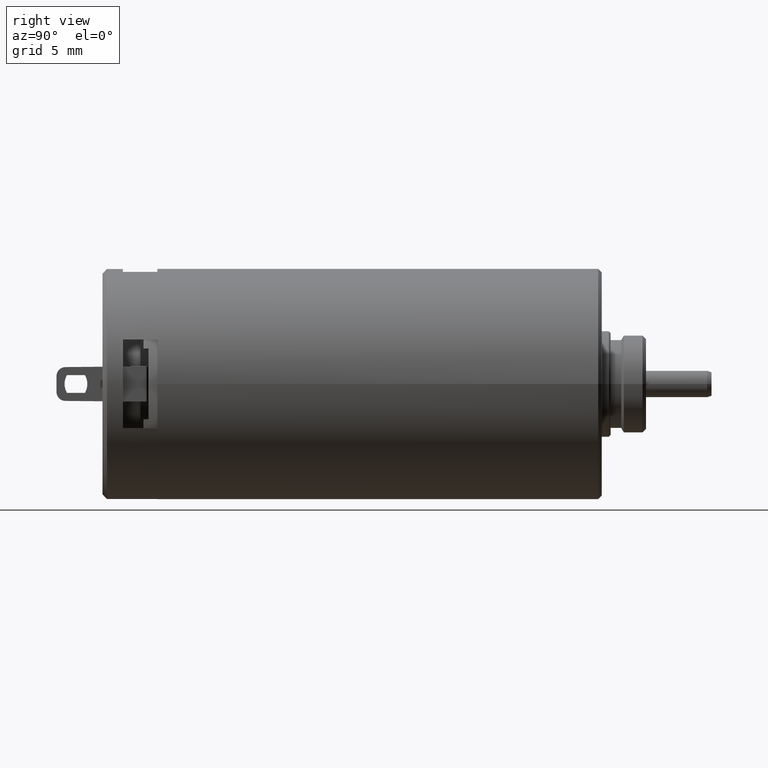
[diagram: clean part render]
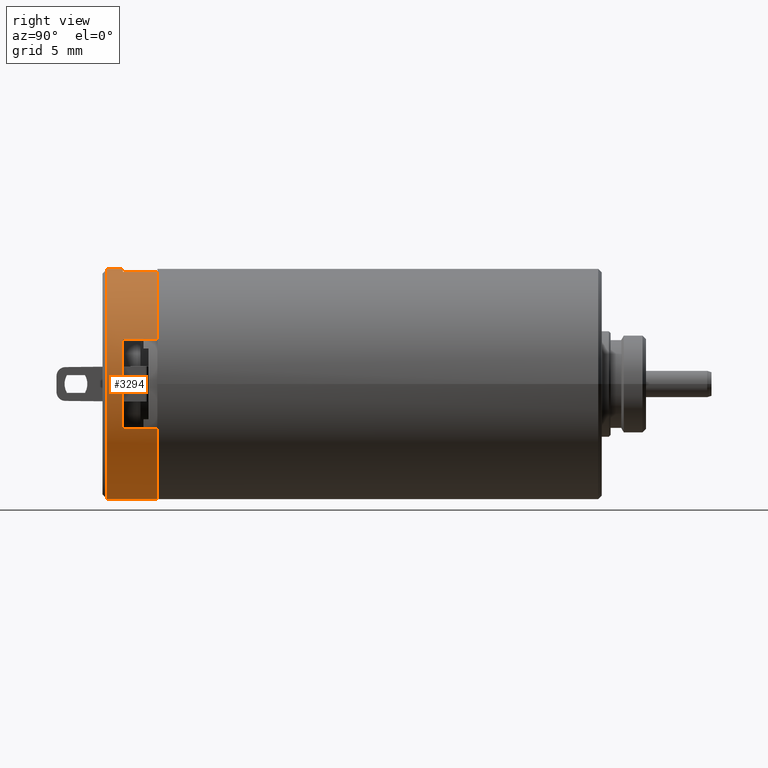
[diagram: same view with one face highlighted and labeled with its STEP entity id]
A machine part, right view. The second image highlights one B-rep face of the part: STEP entity #3294.
In plain terms, the highlighted cylindrical surface (partial cylindrical patch) has radius 6.495 mm, axis along (0, -1, 0).
Its self-contained STEP definition (entity closure, byte-faithful):
#39=CARTESIAN_POINT('',(0.E0,-3.13E1,0.E0));
#40=DIRECTION('',(0.E0,-1.E0,0.E0));
#41=DIRECTION('',(9.229530266967E-1,0.E0,3.849126011334E-1));
#42=AXIS2_PLACEMENT_3D('',#39,#40,#41);
#49=CARTESIAN_POINT('',(0.E0,-3.13E1,0.E0));
#50=DIRECTION('',(0.E0,-1.E0,0.E0));
#51=DIRECTION('',(0.E0,0.E0,-1.E0));
#52=AXIS2_PLACEMENT_3D('',#49,#50,#51);
#160=CARTESIAN_POINT('',(1.437526415165E0,-3.225E1,6.333408206824E0));
#161=CARTESIAN_POINT('',(1.437526415165E0,-3.221666646151E1,6.333408206824E0));
#162=CARTESIAN_POINT('',(1.437324868905E0,-3.218333353849E1,6.334134186195E0));
#163=CARTESIAN_POINT('',(1.437324868905E0,-3.215E1,6.334134186195E0));
#170=CARTESIAN_POINT('',(1.437526415165E0,-3.225E1,6.333408206824E0));
#175=DIRECTION('',(-9.851647400691E-5,-9.999999708355E-1,2.205073997848E-4));
#176=VECTOR('',#175,8.500000247898E-1);
#177=CARTESIAN_POINT('',(1.437408607911E0,-3.13E1,6.333946754900E0));
#178=LINE('',#177,#176);
#179=CARTESIAN_POINT('',(0.E0,-3.325E1,0.E0));
#180=DIRECTION('',(0.E0,-1.E0,0.E0));
#181=DIRECTION('',(9.229530266967E-1,0.E0,-3.849126011334E-1));
#182=AXIS2_PLACEMENT_3D('',#179,#180,#181);
#184=DIRECTION('',(0.E0,-1.E0,0.E0));
#185=VECTOR('',#184,2.85E0);
#186=CARTESIAN_POINT('',(0.E0,-3.13E1,-6.495E0));
#187=LINE('',#186,#185);
#188=CARTESIAN_POINT('',(0.E0,-3.415E1,0.E0));
#189=DIRECTION('',(0.E0,-1.E0,0.E0));
#190=DIRECTION('',(9.229530266967E-1,0.E0,3.849126011334E-1));
#191=AXIS2_PLACEMENT_3D('',#188,#189,#190);
#193=DIRECTION('',(0.E0,-1.E0,0.E0));
#194=VECTOR('',#193,9.E-1);
#195=CARTESIAN_POINT('',(0.E0,-3.325E1,6.495E0));
#196=LINE('',#195,#194);
#197=CARTESIAN_POINT('',(0.E0,-3.325E1,0.E0));
#198=DIRECTION('',(0.E0,-1.E0,0.E0));
#199=DIRECTION('',(2.213100243127E-1,0.E0,9.752035034488E-1));
#200=AXIS2_PLACEMENT_3D('',#197,#198,#199);
#202=DIRECTION('',(-1.178072361849E-4,-9.999998480437E-1,5.385479936025E-4));
#203=VECTOR('',#202,1.000000151956E0);
#204=CARTESIAN_POINT('',(1.437526415165E0,-3.225E1,6.333408206824E0));
#205=LINE('',#204,#203);
#206=DIRECTION('',(0.E0,1.E0,0.E0));
#207=VECTOR('',#206,1.95E0);
#208=CARTESIAN_POINT('',(5.994579908395E0,-3.325E1,2.500007344362E0));
#209=LINE('',#208,#207);
#1923=CARTESIAN_POINT('',(5.994579908395E0,-3.415E1,2.500007344362E0));
#1930=CARTESIAN_POINT('',(0.E0,-3.415E1,0.E0));
#1931=DIRECTION('',(0.E0,1.E0,0.E0));
#1932=DIRECTION('',(9.229530266967E-1,0.E0,3.849126011334E-1));
#1933=AXIS2_PLACEMENT_3D('',#1930,#1931,#1932);
#2171=DIRECTION('',(0.E0,-1.E0,0.E0));
#2172=VECTOR('',#2171,1.95E0);
#2173=CARTESIAN_POINT('',(5.994579908395E0,-3.13E1,-2.500007344362E0));
#2174=LINE('',#2173,#2172);
#2735=CARTESIAN_POINT('',(0.E0,-3.415E1,-6.495E0));
#2737=VERTEX_POINT('',#2735);
#2773=CARTESIAN_POINT('',(0.E0,-3.13E1,-6.495E0));
#2774=VERTEX_POINT('',#2773);
#2790=VERTEX_POINT('',#1923);
#2827=CARTESIAN_POINT('',(0.E0,-3.415E1,6.495E0));
#2828=VERTEX_POINT('',#2827);
#2841=CARTESIAN_POINT('',(1.437408607911E0,-3.325E1,6.333946754900E0));
#2842=CARTESIAN_POINT('',(0.E0,-3.325E1,6.495E0));
#2843=VERTEX_POINT('',#2841);
#2844=VERTEX_POINT('',#2842);
#2915=CARTESIAN_POINT('',(5.994579908395E0,-3.325E1,-2.500007344362E0));
#2917=VERTEX_POINT('',#2915);
#2924=CARTESIAN_POINT('',(5.994579908395E0,-3.325E1,2.500007344362E0));
#2925=VERTEX_POINT('',#2924);
#2926=VERTEX_POINT('',#170);
#2952=CARTESIAN_POINT('',(1.437408607911E0,-3.13E1,6.333946754900E0));
#2953=VERTEX_POINT('',#2952);
#2956=CARTESIAN_POINT('',(5.994579908395E0,-3.13E1,2.500007344362E0));
#2957=VERTEX_POINT('',#2956);
#2958=CARTESIAN_POINT('',(5.994579908395E0,-3.13E1,-2.500007344362E0));
#2959=VERTEX_POINT('',#2958);
#2968=CARTESIAN_POINT('',(1.437324868905E0,-3.215E1,6.334134186195E0));
#2969=VERTEX_POINT('',#2968);
#3266=CARTESIAN_POINT('',(0.E0,-3.1145E1,0.E0));
#3267=DIRECTION('',(0.E0,-1.E0,0.E0));
#3268=DIRECTION('',(0.E0,0.E0,1.E0));
#3269=AXIS2_PLACEMENT_3D('',#3266,#3267,#3268);
#3270=CYLINDRICAL_SURFACE('',#3269,6.495E0);
#3271=ORIENTED_EDGE('',*,*,#3226,.T.);
#3272=ORIENTED_EDGE('',*,*,#3224,.F.);
#3273=ORIENTED_EDGE('',*,*,#3143,.F.);
#3275=ORIENTED_EDGE('',*,*,#3274,.F.);
#3277=ORIENTED_EDGE('',*,*,#3276,.F.);
#3279=ORIENTED_EDGE('',*,*,#3278,.F.);
#3280=ORIENTED_EDGE('',*,*,#3127,.F.);
#3282=ORIENTED_EDGE('',*,*,#3281,.T.);
#3284=ORIENTED_EDGE('',*,*,#3283,.F.);
#3286=ORIENTED_EDGE('',*,*,#3285,.T.);
#3288=ORIENTED_EDGE('',*,*,#3287,.F.);
#3290=ORIENTED_EDGE('',*,*,#3289,.F.);
#3291=ORIENTED_EDGE('',*,*,#3254,.F.);
#3292=EDGE_LOOP('',(#3271,#3272,#3273,#3275,#3277,#3279,#3280,#3282,#3284,#3286,
#3288,#3290,#3291));
#3293=FACE_OUTER_BOUND('',#3292,.F.);
#3294=ADVANCED_FACE('',(#3293),#3270,.T.);
#43=CIRCLE('',#42,6.495E0);
#53=CIRCLE('',#52,6.495E0);
#164=B_SPLINE_CURVE_WITH_KNOTS('',3,(#160,#161,#162,#163),.UNSPECIFIED.,.F.,.F.,
(4,4),(0.E0,1.E0),.UNSPECIFIED.);
#183=CIRCLE('',#182,6.495E0);
#192=CIRCLE('',#191,6.495E0);
#201=CIRCLE('',#200,6.495E0);
#1934=CIRCLE('',#1933,6.495E0);
#3127=EDGE_CURVE('',#2774,#2959,#53,.T.);
#3143=EDGE_CURVE('',#2957,#2953,#43,.T.);
#3224=EDGE_CURVE('',#2953,#2969,#178,.T.);
#3226=EDGE_CURVE('',#2926,#2969,#164,.T.);
#3254=EDGE_CURVE('',#2926,#2843,#205,.T.);
#3274=EDGE_CURVE('',#2925,#2957,#209,.T.);
#3276=EDGE_CURVE('',#2917,#2925,#183,.T.);
#3278=EDGE_CURVE('',#2959,#2917,#2174,.T.);
#3281=EDGE_CURVE('',#2774,#2737,#187,.T.);
#3283=EDGE_CURVE('',#2790,#2737,#1934,.T.);
#3285=EDGE_CURVE('',#2790,#2828,#192,.T.);
#3287=EDGE_CURVE('',#2844,#2828,#196,.T.);
#3289=EDGE_CURVE('',#2843,#2844,#201,.T.);